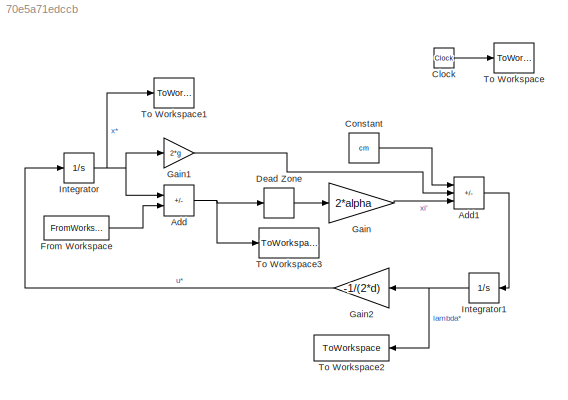
MODEL slx_70e5a71edccb
KIND model
CONFIG AbsTol = auto
CONFIG EnableMultiTasking = off
CONFIG FixedStep = auto
CONFIG MaxStep = sim_step
CONFIG MinStep = auto
CONFIG RelTol = rel_tol
CONFIG SampleTimeConstraint = Unconstrained
CONFIG SolverName = VariableStepAuto
CONFIG StartTime = 0.0
CONFIG StopTime = T
BLOCK [Sum] Add
  IconShape = rectangular
  Inputs = +-
BLOCK [Sum] Add1
  IconShape = rectangular
  Inputs = +--
BLOCK [Clock] Clock
BLOCK [Constant] Constant
  Value = cm
BLOCK [DeadZone] Dead Zone
  LowerValue = 0
  UpperValue = Pbar
BLOCK [FromWorkspace] From Workspace
  VariableName = pl_data
BLOCK [Gain] Gain
  Gain = 2*alpha
BLOCK [Gain] Gain1
  Gain = 2*g
BLOCK [Gain] Gain2
  Gain = -1/(2*d)
  NameLocation = top
BLOCK [Integrator] Integrator
  InitialCondition = x0
BLOCK [Integrator] Integrator1
  InitialCondition = lambda0
  NameLocation = top
BLOCK [ToWorkspace] To Workspace
  FixptAsFi = on
  MaxDataPoints = inf
  SampleTime = -1
  VariableName = ts
BLOCK [ToWorkspace] To Workspace1
  FixptAsFi = on
  MaxDataPoints = inf
  SampleTime = -1
  VariableName = x_star
BLOCK [ToWorkspace] To Workspace2
  FixptAsFi = on
  MaxDataPoints = inf
  NameLocation = top
  SampleTime = -1
  VariableName = lambda_star
BLOCK [ToWorkspace] To Workspace3
  FixptAsFi = on
  MaxDataPoints = inf
  SampleTime = -1
  VariableName = pm_star
LINE Add1:1 -> Integrator1:1
NET Add:1 -> Dead Zone:1, To Workspace3:1
LINE Clock:1 -> To Workspace:1
LINE Constant:1 -> Add1:1
LINE Dead Zone:1 -> Gain:1
LINE From Workspace:1 -> Add:2
LINE Gain1:1 -> Add1:2
LINE Gain2:1 -> Integrator:1
LINE Gain:1 -> Add1:3
NET Integrator1:1 -> Gain2:1, To Workspace2:1
NET Integrator:1 -> Add:1, Gain1:1, To Workspace1:1
note: NET lines group one-source signal fan-out (src -> all destinations, sorted); 1:1 wires keep LINE
